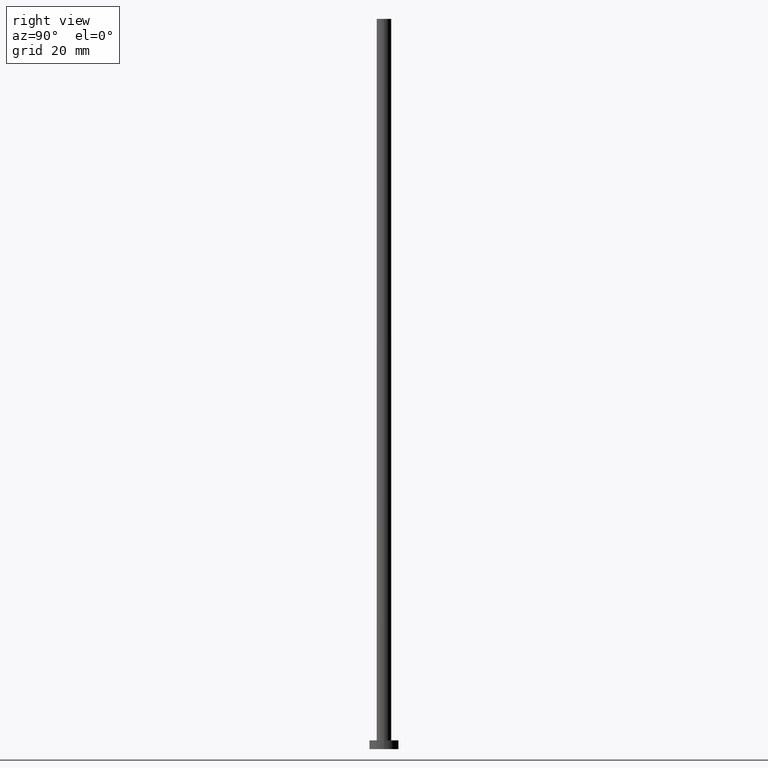
[diagram: clean part render]
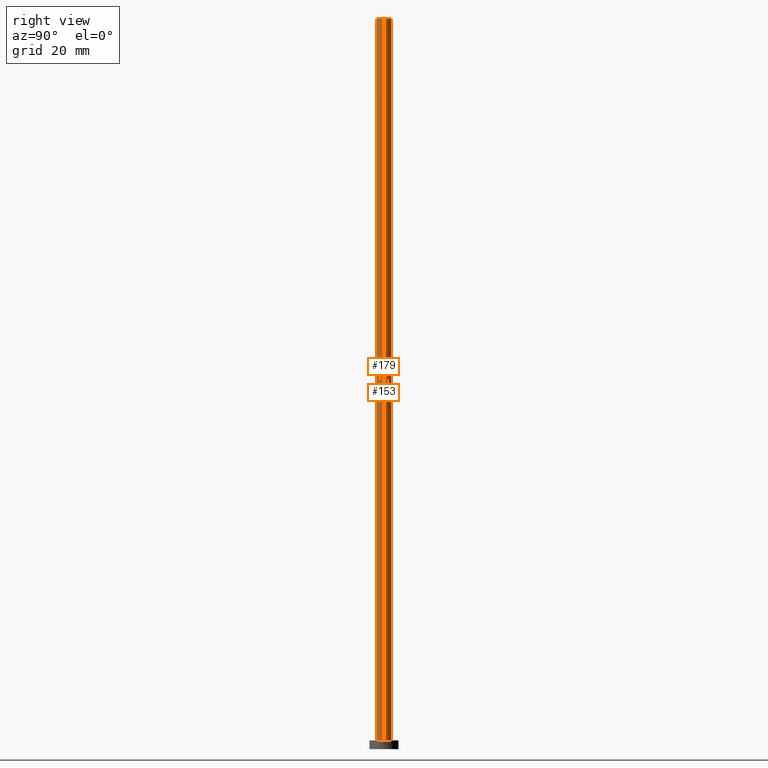
[diagram: same view with one multi-face feature highlighted, each face labeled with its STEP entity id]
A machine part, right view. The highlighted faces form ONE feature: a constant-radius fillet chain: 2 tangent blend faces with common blend radius 2.5 mm. The faces share edges in the B-rep.
Their STEP definitions:
[1] entity #179 (Cylinder):
#6 = CARTESIAN_POINT ( 'NONE',  ( -2.500000000000000000, 0.000000000000000000, 250.0000000000000000 ) ) ;
#9 = DIRECTION ( 'NONE',  ( 1.000000000000000000, 0.000000000000000000, 0.000000000000000000 ) ) ;
#13 = EDGE_CURVE ( 'NONE', #56, #173, #50, .T. ) ;
#34 = DIRECTION ( 'NONE',  ( -0.000000000000000000, -0.000000000000000000, -1.000000000000000000 ) ) ;
#50 = LINE ( 'NONE', #121, #199 ) ;
#55 = CARTESIAN_POINT ( 'NONE',  ( 0.000000000000000000, 0.000000000000000000, 250.0000000000000000 ) ) ;
#56 = VERTEX_POINT ( 'NONE', #120 ) ;
#63 = DIRECTION ( 'NONE',  ( -0.000000000000000000, -0.000000000000000000, -1.000000000000000000 ) ) ;
#70 = VERTEX_POINT ( 'NONE', #222 ) ;
#74 = ORIENTED_EDGE ( 'NONE', *, *, #126, .T. ) ;
#82 = FACE_OUTER_BOUND ( 'NONE', #177, .T. ) ;
#92 = DIRECTION ( 'NONE',  ( -1.000000000000000000, 0.000000000000000000, 0.000000000000000000 ) ) ;
#101 = LINE ( 'NONE', #6, #210 ) ;
#111 = CYLINDRICAL_SURFACE ( 'NONE', #211, 2.500000000000000000 ) ;
#112 = DIRECTION ( 'NONE',  ( 0.000000000000000000, 0.000000000000000000, 1.000000000000000000 ) ) ;
#120 = CARTESIAN_POINT ( 'NONE',  ( 2.500000000000000000, 3.061616997868383141E-16, 250.0000000000000000 ) ) ;
#121 = CARTESIAN_POINT ( 'NONE',  ( 2.500000000000000000, 3.061616997868383141E-16, 250.0000000000000000 ) ) ;
#126 = EDGE_CURVE ( 'NONE', #70, #173, #228, .T. ) ;
#133 = DIRECTION ( 'NONE',  ( 1.000000000000000000, 0.000000000000000000, 0.000000000000000000 ) ) ;
#134 = ORIENTED_EDGE ( 'NONE', *, *, #136, .T. ) ;
#136 = EDGE_CURVE ( 'NONE', #192, #70, #101, .T. ) ;
#164 = CARTESIAN_POINT ( 'NONE',  ( 0.000000000000000000, 0.000000000000000000, 3.000000000000000000 ) ) ;
#168 = CARTESIAN_POINT ( 'NONE',  ( 0.000000000000000000, 0.000000000000000000, 250.0000000000000000 ) ) ;
#169 = AXIS2_PLACEMENT_3D ( 'NONE', #55, #112, #133 ) ;
#173 = VERTEX_POINT ( 'NONE', #220 ) ;
#177 = EDGE_LOOP ( 'NONE', ( #209, #231, #134, #74 ) ) ;
#179 = ADVANCED_FACE ( 'NONE', ( #82 ), #111, .T. ) ;
#188 = CARTESIAN_POINT ( 'NONE',  ( -2.500000000000000000, 0.000000000000000000, 250.0000000000000000 ) ) ;
#192 = VERTEX_POINT ( 'NONE', #188 ) ;
#199 = VECTOR ( 'NONE', #63, 1000.000000000000000 ) ;
#201 = CIRCLE ( 'NONE', #169, 2.500000000000000000 ) ;
#209 = ORIENTED_EDGE ( 'NONE', *, *, #13, .F. ) ;
#210 = VECTOR ( 'NONE', #34, 1000.000000000000000 ) ;
#211 = AXIS2_PLACEMENT_3D ( 'NONE', #168, #232, #92 ) ;
#220 = CARTESIAN_POINT ( 'NONE',  ( 2.500000000000000000, 3.061616997868383141E-16, 3.000000000000000000 ) ) ;
#222 = CARTESIAN_POINT ( 'NONE',  ( -2.500000000000000000, 0.000000000000000000, 3.000000000000000000 ) ) ;
#224 = AXIS2_PLACEMENT_3D ( 'NONE', #164, #245, #9 ) ;
#228 = CIRCLE ( 'NONE', #224, 2.500000000000000000 ) ;
#231 = ORIENTED_EDGE ( 'NONE', *, *, #252, .F. ) ;
#232 = DIRECTION ( 'NONE',  ( -0.000000000000000000, -0.000000000000000000, -1.000000000000000000 ) ) ;
#245 = DIRECTION ( 'NONE',  ( 0.000000000000000000, 0.000000000000000000, 1.000000000000000000 ) ) ;
#252 = EDGE_CURVE ( 'NONE', #192, #56, #201, .T. ) ;
[2] entity #153 (Cylinder):
#6 = CARTESIAN_POINT ( 'NONE',  ( -2.500000000000000000, 0.000000000000000000, 250.0000000000000000 ) ) ;
#10 = AXIS2_PLACEMENT_3D ( 'NONE', #46, #197, #12 ) ;
#12 = DIRECTION ( 'NONE',  ( 1.000000000000000000, 0.000000000000000000, 0.000000000000000000 ) ) ;
#13 = EDGE_CURVE ( 'NONE', #56, #173, #50, .T. ) ;
#22 = ORIENTED_EDGE ( 'NONE', *, *, #136, .F. ) ;
#25 = CIRCLE ( 'NONE', #205, 2.500000000000000000 ) ;
#30 = DIRECTION ( 'NONE',  ( 0.000000000000000000, 0.000000000000000000, 1.000000000000000000 ) ) ;
#34 = DIRECTION ( 'NONE',  ( -0.000000000000000000, -0.000000000000000000, -1.000000000000000000 ) ) ;
#46 = CARTESIAN_POINT ( 'NONE',  ( 0.000000000000000000, 0.000000000000000000, 250.0000000000000000 ) ) ;
#50 = LINE ( 'NONE', #121, #199 ) ;
#56 = VERTEX_POINT ( 'NONE', #120 ) ;
#58 = CYLINDRICAL_SURFACE ( 'NONE', #187, 2.500000000000000000 ) ;
#59 = EDGE_CURVE ( 'NONE', #173, #70, #25, .T. ) ;
#63 = DIRECTION ( 'NONE',  ( -0.000000000000000000, -0.000000000000000000, -1.000000000000000000 ) ) ;
#65 = DIRECTION ( 'NONE',  ( -0.000000000000000000, -0.000000000000000000, -1.000000000000000000 ) ) ;
#70 = VERTEX_POINT ( 'NONE', #222 ) ;
#76 = EDGE_LOOP ( 'NONE', ( #95, #174, #184, #22 ) ) ;
#79 = FACE_OUTER_BOUND ( 'NONE', #76, .T. ) ;
#81 = CARTESIAN_POINT ( 'NONE',  ( 0.000000000000000000, 0.000000000000000000, 250.0000000000000000 ) ) ;
#95 = ORIENTED_EDGE ( 'NONE', *, *, #176, .F. ) ;
#101 = LINE ( 'NONE', #6, #210 ) ;
#104 = CARTESIAN_POINT ( 'NONE',  ( 0.000000000000000000, 0.000000000000000000, 3.000000000000000000 ) ) ;
#110 = CIRCLE ( 'NONE', #10, 2.500000000000000000 ) ;
#120 = CARTESIAN_POINT ( 'NONE',  ( 2.500000000000000000, 3.061616997868383141E-16, 250.0000000000000000 ) ) ;
#121 = CARTESIAN_POINT ( 'NONE',  ( 2.500000000000000000, 3.061616997868383141E-16, 250.0000000000000000 ) ) ;
#136 = EDGE_CURVE ( 'NONE', #192, #70, #101, .T. ) ;
#148 = DIRECTION ( 'NONE',  ( 1.000000000000000000, 0.000000000000000000, 0.000000000000000000 ) ) ;
#153 = ADVANCED_FACE ( 'NONE', ( #79 ), #58, .T. ) ;
#160 = DIRECTION ( 'NONE',  ( -1.000000000000000000, 0.000000000000000000, 0.000000000000000000 ) ) ;
#173 = VERTEX_POINT ( 'NONE', #220 ) ;
#174 = ORIENTED_EDGE ( 'NONE', *, *, #13, .T. ) ;
#176 = EDGE_CURVE ( 'NONE', #56, #192, #110, .T. ) ;
#184 = ORIENTED_EDGE ( 'NONE', *, *, #59, .T. ) ;
#187 = AXIS2_PLACEMENT_3D ( 'NONE', #81, #65, #160 ) ;
#188 = CARTESIAN_POINT ( 'NONE',  ( -2.500000000000000000, 0.000000000000000000, 250.0000000000000000 ) ) ;
#192 = VERTEX_POINT ( 'NONE', #188 ) ;
#197 = DIRECTION ( 'NONE',  ( 0.000000000000000000, 0.000000000000000000, 1.000000000000000000 ) ) ;
#199 = VECTOR ( 'NONE', #63, 1000.000000000000000 ) ;
#205 = AXIS2_PLACEMENT_3D ( 'NONE', #104, #30, #148 ) ;
#210 = VECTOR ( 'NONE', #34, 1000.000000000000000 ) ;
#220 = CARTESIAN_POINT ( 'NONE',  ( 2.500000000000000000, 3.061616997868383141E-16, 3.000000000000000000 ) ) ;
#222 = CARTESIAN_POINT ( 'NONE',  ( -2.500000000000000000, 0.000000000000000000, 3.000000000000000000 ) ) ;